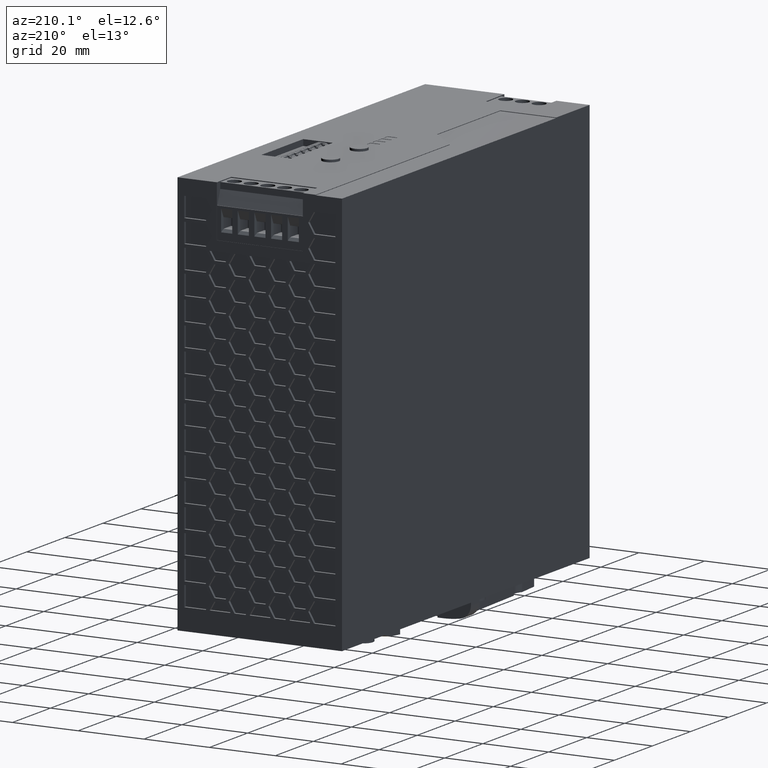
[diagram: clean part render]
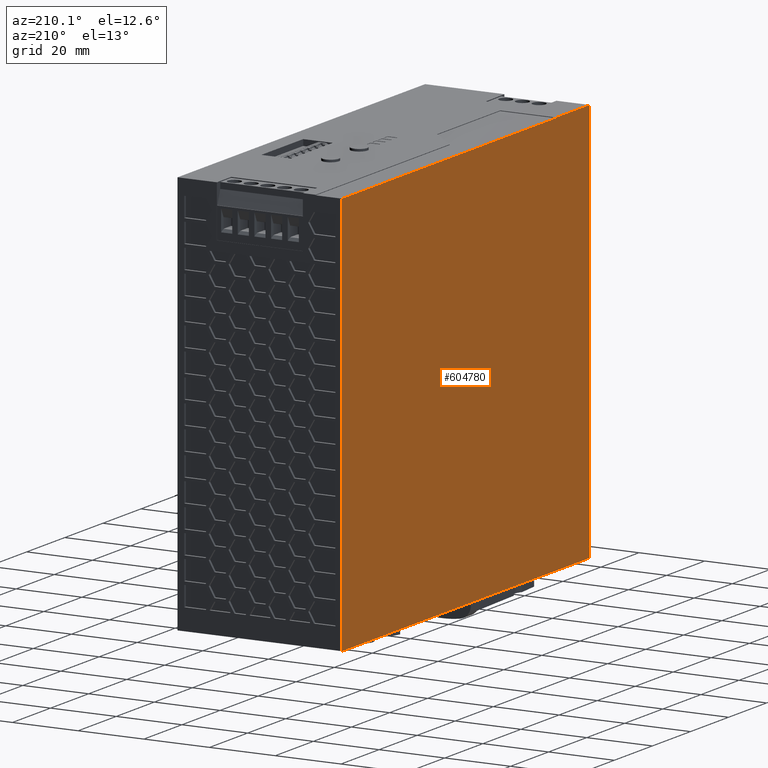
[diagram: same view with one face highlighted and labeled with its STEP entity id]
A machine part, auxiliary view. The second image highlights one B-rep face of the part: STEP entity #604780.
In plain terms, the highlighted planar face has unit normal (-1, 0, 0).
Its self-contained STEP definition (entity closure, byte-faithful):
#120=CARTESIAN_POINT('',(-14.06,-0.0999999999988432,-0.800000000000011))
;
#130=VERTEX_POINT('',#120);
#160=CARTESIAN_POINT('',(-14.06,-0.0999999999988432,0.));
#170=DIRECTION('',(0.,0.,1.));
#180=VECTOR('',#170,1.);
#190=LINE('',#160,#180);
#200=CARTESIAN_POINT('',(-14.06,-0.0999999999988432,129.2));
#210=VERTEX_POINT('',#200);
#220=EDGE_CURVE('',#130,#210,#190,.T.);
#262470=CARTESIAN_POINT('',(-14.06,0.,111.599161077708));
#262480=DIRECTION('',(0.,-1.,1.32377063687351E-39));
#262490=VECTOR('',#262480,1.);
#262500=LINE('',#262470,#262490);
#262510=CARTESIAN_POINT('',(-14.06,122.150000000001,111.599161077708));
#262520=VERTEX_POINT('',#262510);
#262530=CARTESIAN_POINT('',(-14.06,122.,111.599161077708));
#262540=VERTEX_POINT('',#262530);
#262550=EDGE_CURVE('',#262520,#262540,#262500,.T.);
#506470=CARTESIAN_POINT('',(-14.06,122.150000000001,129.2));
#506480=VERTEX_POINT('',#506470);
#506510=CARTESIAN_POINT('',(-14.06,122.150000000001,0.));
#506520=DIRECTION('',(0.,0.,-1.));
#506530=VECTOR('',#506520,1.);
#506540=LINE('',#506510,#506530);
#506550=EDGE_CURVE('',#506480,#262520,#506540,.T.);
#546170=CARTESIAN_POINT('',(-14.06,122.,-0.800000000000011));
#546180=VERTEX_POINT('',#546170);
#546210=CARTESIAN_POINT('',(-14.06,0.,-0.800000000000011));
#546220=DIRECTION('',(0.,1.,0.));
#546230=VECTOR('',#546220,1.);
#546240=LINE('',#546210,#546230);
#546250=EDGE_CURVE('',#130,#546180,#546240,.T.);
#580470=CARTESIAN_POINT('',(-14.06,0.,129.2));
#580480=DIRECTION('',(0.,-1.,0.));
#580490=VECTOR('',#580480,1.);
#580500=LINE('',#580470,#580490);
#580510=EDGE_CURVE('',#506480,#210,#580500,.T.);
#591100=CARTESIAN_POINT('',(-14.06,122.,0.));
#591110=DIRECTION('',(0.,0.,-1.));
#591120=VECTOR('',#591110,1.);
#591130=LINE('',#591100,#591120);
#591140=EDGE_CURVE('',#262540,#546180,#591130,.T.);
#604650=CARTESIAN_POINT('',(-14.06,120.400000000001,0.));
#604660=DIRECTION('',(-1.,0.,0.));
#604670=DIRECTION('',(0.,-1.,0.));
#604680=AXIS2_PLACEMENT_3D('',#604650,#604660,#604670);
#604690=PLANE('',#604680);
#604700=ORIENTED_EDGE('',*,*,#580510,.F.);
#604710=ORIENTED_EDGE('',*,*,#220,.T.);
#604720=ORIENTED_EDGE('',*,*,#546250,.F.);
#604730=ORIENTED_EDGE('',*,*,#591140,.T.);
#604740=ORIENTED_EDGE('',*,*,#262550,.T.);
#604750=ORIENTED_EDGE('',*,*,#506550,.T.);
#604760=EDGE_LOOP('',(#604750,#604740,#604730,#604720,#604710,#604700));
#604770=FACE_OUTER_BOUND('',#604760,.T.);
#604780=ADVANCED_FACE('',(#604770),#604690,.T.);